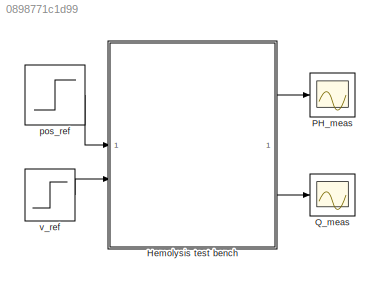
MODEL slx_0898771c1d99
KIND model
CONFIG AbsTol = auto
CONFIG EnableMultiTasking = off
CONFIG FixedStep = auto
CONFIG MaxStep = auto
CONFIG MinStep = auto
CONFIG RelTol = 1e-3
CONFIG SampleTimeConstraint = Unconstrained
CONFIG SolverName = VariableStepAuto
CONFIG StartTime = 0.0
CONFIG StopTime = 480
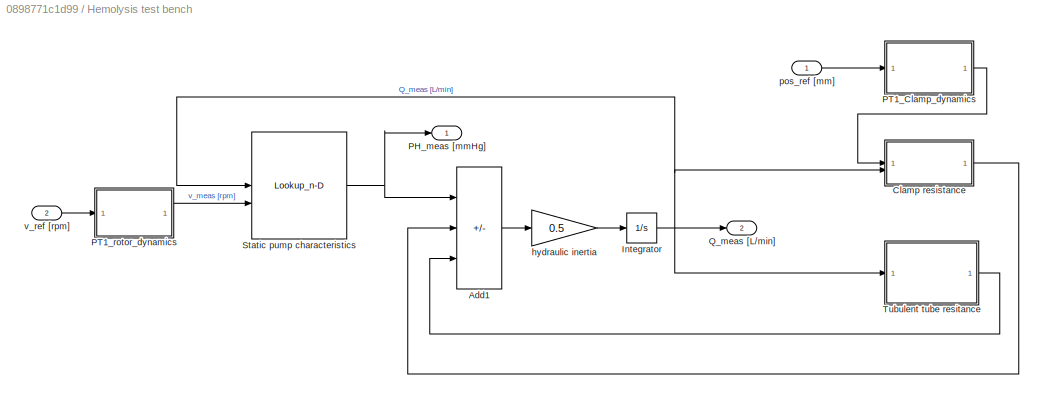
BLOCK [SubSystem] Hemolysis test bench
BLOCK [Sum] Hemolysis test bench/Add1
  IconShape = rectangular
  Inputs = +--
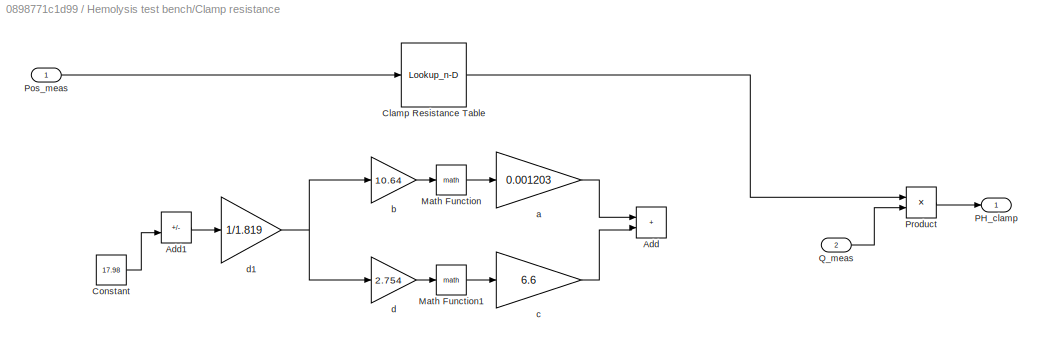
BLOCK [SubSystem] Hemolysis test bench/Clamp resistance
BLOCK [Sum] Hemolysis test bench/Clamp resistance/Add
  Commented = on
  IconShape = rectangular
BLOCK [Sum] Hemolysis test bench/Clamp resistance/Add1
  Commented = on
  IconShape = rectangular
  Inputs = +-
BLOCK [Lookup_n-D] Hemolysis test bench/Clamp resistance/Clamp Resistance Table
  BreakpointsForDimension1 = Pos_ref_vals
  InputPortMap = u0
  InternalRulePriority = Speed
  NumberOfTableDimensions = 1
  RndMeth = Simplest
  Table = R_clamp_mean
BLOCK [Constant] Hemolysis test bench/Clamp resistance/Constant
  Commented = on
  Value = 17.98
BLOCK [Math] Hemolysis test bench/Clamp resistance/Math Function
  Commented = on
BLOCK [Math] Hemolysis test bench/Clamp resistance/Math Function1
  Commented = on
BLOCK [Outport] Hemolysis test bench/Clamp resistance/PH_clamp
BLOCK [Inport] Hemolysis test bench/Clamp resistance/Pos_meas
BLOCK [Product] Hemolysis test bench/Clamp resistance/Product
BLOCK [Inport] Hemolysis test bench/Clamp resistance/Q_meas
  Port = 2
BLOCK [Gain] Hemolysis test bench/Clamp resistance/a
  Commented = on
  Gain = 0.001203
BLOCK [Gain] Hemolysis test bench/Clamp resistance/b
  Commented = on
  Gain = 10.64
BLOCK [Gain] Hemolysis test bench/Clamp resistance/c
  Commented = on
  Gain = 6.6
BLOCK [Gain] Hemolysis test bench/Clamp resistance/d
  Commented = on
  Gain = 2.754
BLOCK [Gain] Hemolysis test bench/Clamp resistance/d1
  Commented = on
  Gain = 1/1.819
BLOCK [Integrator] Hemolysis test bench/Integrator
  InitialCondition = 0.01
  LimitOutput = on
  LowerSaturationLimit = 0.01
BLOCK [Outport] Hemolysis test bench/PH_meas [mmHg]
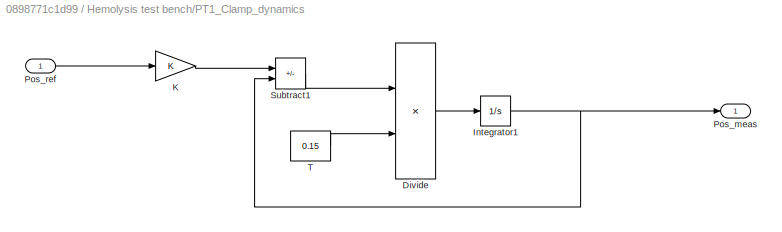
BLOCK [SubSystem] Hemolysis test bench/PT1_Clamp_dynamics
BLOCK [Product] Hemolysis test bench/PT1_Clamp_dynamics/Divide
  Inputs = */
BLOCK [Integrator] Hemolysis test bench/PT1_Clamp_dynamics/Integrator1
  InitialCondition = 18
BLOCK [Gain] Hemolysis test bench/PT1_Clamp_dynamics/K
BLOCK [Outport] Hemolysis test bench/PT1_Clamp_dynamics/Pos_meas
  NameLocation = top
BLOCK [Inport] Hemolysis test bench/PT1_Clamp_dynamics/Pos_ref
BLOCK [Sum] Hemolysis test bench/PT1_Clamp_dynamics/Subtract1
  IconShape = rectangular
  Inputs = +-
BLOCK [Constant] Hemolysis test bench/PT1_Clamp_dynamics/T
  Value = 0.15
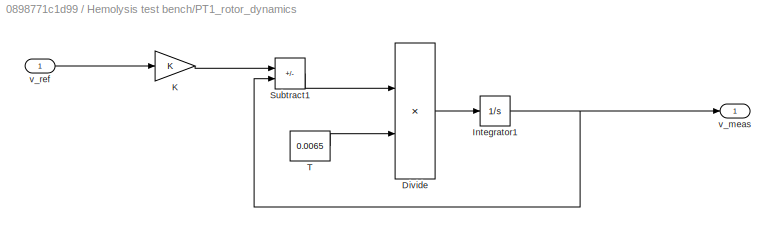
BLOCK [SubSystem] Hemolysis test bench/PT1_rotor_dynamics
BLOCK [Product] Hemolysis test bench/PT1_rotor_dynamics/Divide
  Inputs = */
BLOCK [Integrator] Hemolysis test bench/PT1_rotor_dynamics/Integrator1
  InitialCondition = 11000
BLOCK [Gain] Hemolysis test bench/PT1_rotor_dynamics/K
BLOCK [Sum] Hemolysis test bench/PT1_rotor_dynamics/Subtract1
  IconShape = rectangular
  Inputs = +-
BLOCK [Constant] Hemolysis test bench/PT1_rotor_dynamics/T
  Value = 0.0065
BLOCK [Outport] Hemolysis test bench/PT1_rotor_dynamics/v_meas
  NameLocation = top
BLOCK [Inport] Hemolysis test bench/PT1_rotor_dynamics/v_ref
BLOCK [Outport] Hemolysis test bench/Q_meas [L//min]
  Port = 2
BLOCK [Lookup_n-D] Hemolysis test bench/Static pump characteristics
  BreakpointsForDimension1 = Q_vals
  BreakpointsForDimension2 = v_ref_vals
  InputPortMap = u0,u1
  InternalRulePriority = Speed
  RndMeth = Simplest
  Table = LUT_Static_Pump'
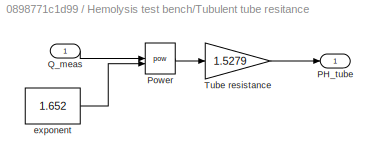
BLOCK [SubSystem] Hemolysis test bench/Tubulent tube resitance
BLOCK [Outport] Hemolysis test bench/Tubulent tube resitance/PH_tube
BLOCK [Math] Hemolysis test bench/Tubulent tube resitance/Power
  Operator = pow
BLOCK [Inport] Hemolysis test bench/Tubulent tube resitance/Q_meas
BLOCK [Gain] Hemolysis test bench/Tubulent tube resitance/Tube resistance
  Gain = 1.5279
BLOCK [Constant] Hemolysis test bench/Tubulent tube resitance/exponent
  Value = 1.652
BLOCK [Gain] Hemolysis test bench/hydraulic inertia
  Gain = 0.5
BLOCK [Inport] Hemolysis test bench/pos_ref [mm]
BLOCK [Inport] Hemolysis test bench/v_ref [rpm]
  Port = 2
BLOCK [Scope] PH_meas
  Floating = off
  NumInputPorts = 1
  ScopeSpecificationString = Simulink.scopes.TimeScopeBlockCfg('CurrentConfiguration', extmgr.ConfigurationSet(extmgr.Configuration('Core','General UI',true),extmgr.Configuration('Core','Source UI',true),extmgr.Configuration('Sources','WiredSimulink',true),extmgr.Configuration('Visuals','Time Domain',true,'SerializedDisplays',{struct('MinYLimReal','115.27115','MaxYLimReal','203.32116','YLabelReal','','MinYLimMag','115.27115',...<+1717ch>
BLOCK [Scope] Q_meas
  Floating = off
  NumInputPorts = 1
  ScopeSpecificationString = Simulink.scopes.TimeScopeBlockCfg('CurrentConfiguration', extmgr.ConfigurationSet(extmgr.Configuration('Core','General UI',true),extmgr.Configuration('Core','Source UI',true),extmgr.Configuration('Sources','WiredSimulink',true,'DataLoggingVariableName','ScopeData1'),extmgr.Configuration('Visuals','Time Domain',true,'SerializedDisplays',{struct('MinYLimReal','0.009','MaxYLimReal','0.011','YLabelRea...<+1478ch>
BLOCK [Step] pos_ref
  After = 18
  Before = 18
  SampleTime = 0
  Time = 120
BLOCK [Step] v_ref
  After = 6250
  Before = 6000
  SampleTime = 0
  Time = 120
LINE Hemolysis test bench/Add1:1 -> Hemolysis test bench/hydraulic inertia:1
LINE Hemolysis test bench/Clamp resistance/Add1:1 -> Hemolysis test bench/Clamp resistance/d1:1
LINE Hemolysis test bench/Clamp resistance/Clamp Resistance Table:1 -> Hemolysis test bench/Clamp resistance/Product:1
LINE Hemolysis test bench/Clamp resistance/Constant:1 -> Hemolysis test bench/Clamp resistance/Add1:2
LINE Hemolysis test bench/Clamp resistance/Math Function1:1 -> Hemolysis test bench/Clamp resistance/c:1
LINE Hemolysis test bench/Clamp resistance/Math Function:1 -> Hemolysis test bench/Clamp resistance/a:1
LINE Hemolysis test bench/Clamp resistance/Pos_meas:1 -> Hemolysis test bench/Clamp resistance/Clamp Resistance Table:1
LINE Hemolysis test bench/Clamp resistance/Product:1 -> Hemolysis test bench/Clamp resistance/PH_clamp:1
LINE Hemolysis test bench/Clamp resistance/Q_meas:1 -> Hemolysis test bench/Clamp resistance/Product:2
LINE Hemolysis test bench/Clamp resistance/a:1 -> Hemolysis test bench/Clamp resistance/Add:1
LINE Hemolysis test bench/Clamp resistance/b:1 -> Hemolysis test bench/Clamp resistance/Math Function:1
LINE Hemolysis test bench/Clamp resistance/c:1 -> Hemolysis test bench/Clamp resistance/Add:2
NET Hemolysis test bench/Clamp resistance/d1:1 -> Hemolysis test bench/Clamp resistance/b:1, Hemolysis test bench/Clamp resistance/d:1
LINE Hemolysis test bench/Clamp resistance/d:1 -> Hemolysis test bench/Clamp resistance/Math Function1:1
LINE Hemolysis test bench/Clamp resistance:1 -> Hemolysis test bench/Add1:2
NET Hemolysis test bench/Integrator:1 -> Hemolysis test bench/Clamp resistance:2, Hemolysis test bench/Q_meas [L//min]:1, Hemolysis test bench/Static pump characteristics:1, Hemolysis test bench/Tubulent tube resitance:1
LINE Hemolysis test bench/PT1_Clamp_dynamics/Divide:1 -> Hemolysis test bench/PT1_Clamp_dynamics/Integrator1:1
NET Hemolysis test bench/PT1_Clamp_dynamics/Integrator1:1 -> Hemolysis test bench/PT1_Clamp_dynamics/Pos_meas:1, Hemolysis test bench/PT1_Clamp_dynamics/Subtract1:2
LINE Hemolysis test bench/PT1_Clamp_dynamics/K:1 -> Hemolysis test bench/PT1_Clamp_dynamics/Subtract1:1
LINE Hemolysis test bench/PT1_Clamp_dynamics/Pos_ref:1 -> Hemolysis test bench/PT1_Clamp_dynamics/K:1
LINE Hemolysis test bench/PT1_Clamp_dynamics/Subtract1:1 -> Hemolysis test bench/PT1_Clamp_dynamics/Divide:1
LINE Hemolysis test bench/PT1_Clamp_dynamics/T:1 -> Hemolysis test bench/PT1_Clamp_dynamics/Divide:2
LINE Hemolysis test bench/PT1_Clamp_dynamics:1 -> Hemolysis test bench/Clamp resistance:1
LINE Hemolysis test bench/PT1_rotor_dynamics/Divide:1 -> Hemolysis test bench/PT1_rotor_dynamics/Integrator1:1
NET Hemolysis test bench/PT1_rotor_dynamics/Integrator1:1 -> Hemolysis test bench/PT1_rotor_dynamics/Subtract1:2, Hemolysis test bench/PT1_rotor_dynamics/v_meas:1
LINE Hemolysis test bench/PT1_rotor_dynamics/K:1 -> Hemolysis test bench/PT1_rotor_dynamics/Subtract1:1
LINE Hemolysis test bench/PT1_rotor_dynamics/Subtract1:1 -> Hemolysis test bench/PT1_rotor_dynamics/Divide:1
LINE Hemolysis test bench/PT1_rotor_dynamics/T:1 -> Hemolysis test bench/PT1_rotor_dynamics/Divide:2
LINE Hemolysis test bench/PT1_rotor_dynamics/v_ref:1 -> Hemolysis test bench/PT1_rotor_dynamics/K:1
LINE Hemolysis test bench/PT1_rotor_dynamics:1 -> Hemolysis test bench/Static pump characteristics:2
NET Hemolysis test bench/Static pump characteristics:1 -> Hemolysis test bench/Add1:1, Hemolysis test bench/PH_meas [mmHg]:1
LINE Hemolysis test bench/Tubulent tube resitance/Power:1 -> Hemolysis test bench/Tubulent tube resitance/Tube resistance:1
LINE Hemolysis test bench/Tubulent tube resitance/Q_meas:1 -> Hemolysis test bench/Tubulent tube resitance/Power:1
LINE Hemolysis test bench/Tubulent tube resitance/Tube resistance:1 -> Hemolysis test bench/Tubulent tube resitance/PH_tube:1
LINE Hemolysis test bench/Tubulent tube resitance/exponent:1 -> Hemolysis test bench/Tubulent tube resitance/Power:2
LINE Hemolysis test bench/Tubulent tube resitance:1 -> Hemolysis test bench/Add1:3
LINE Hemolysis test bench/hydraulic inertia:1 -> Hemolysis test bench/Integrator:1
LINE Hemolysis test bench/pos_ref [mm]:1 -> Hemolysis test bench/PT1_Clamp_dynamics:1
LINE Hemolysis test bench/v_ref [rpm]:1 -> Hemolysis test bench/PT1_rotor_dynamics:1
LINE Hemolysis test bench:1 -> PH_meas:1
LINE Hemolysis test bench:2 -> Q_meas:1
LINE pos_ref:1 -> Hemolysis test bench:1
LINE v_ref:1 -> Hemolysis test bench:2
note: NET lines group one-source signal fan-out (src -> all destinations, sorted); 1:1 wires keep LINE
